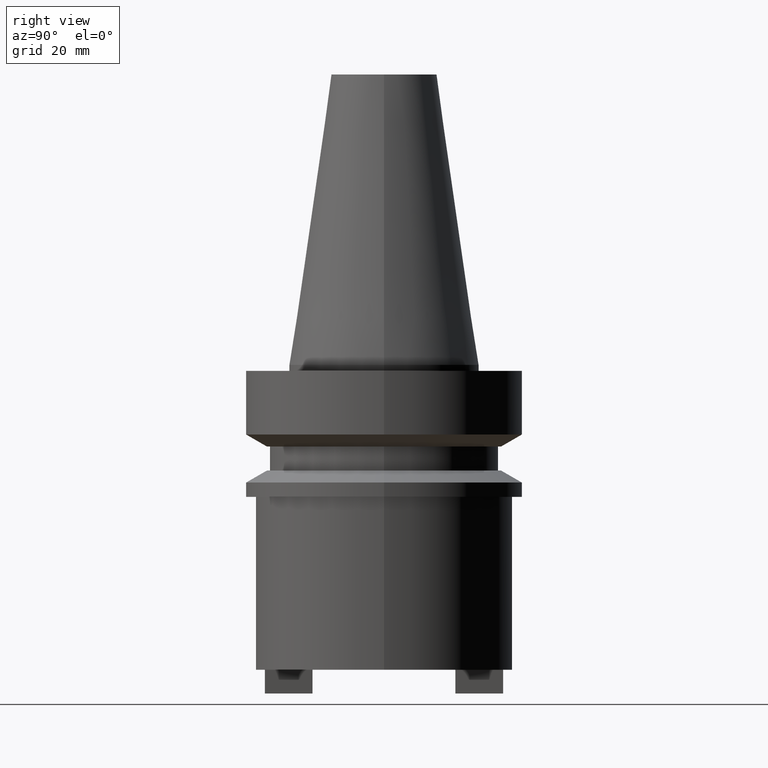
[diagram: clean part render]
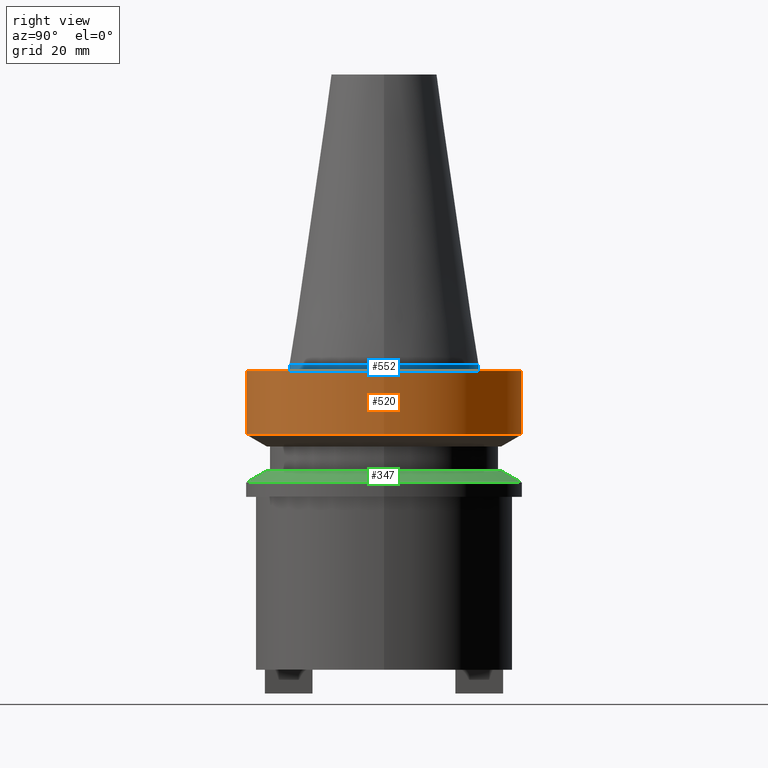
[diagram: same view with three faces highlighted in distinct colors, each labeled with its STEP entity id]
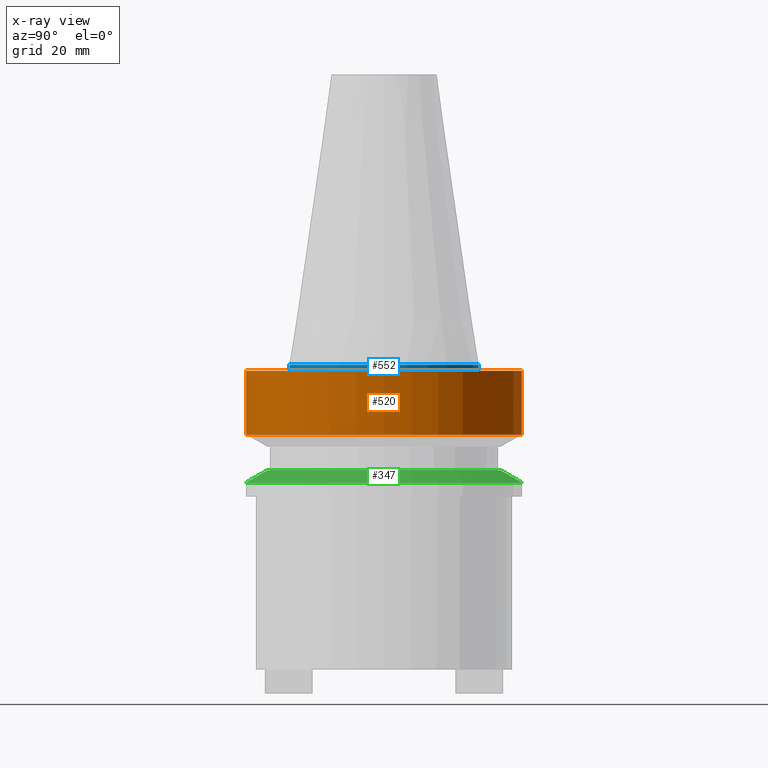
[diagram: x-ray of the same camera — body ghosted, the three highlighted faces saturated]
A machine part, right view with three faces highlighted in distinct colors.
The next image is the same camera in x-ray (body ghosted, the three faces saturated) — at least one of them is partly hidden behind the body in this view.
Their STEP definitions:

[orange] entity #520 — the highlighted cylindrical surface (bore or boss wall) has radius 23 mm, axis along (-0, -0, 1).
#14 = CARTESIAN_POINT ( 'NONE',  ( 0.000000000000000000, 0.000000000000000000, -11.60014200631680126 ) ) ;
#20 = AXIS2_PLACEMENT_3D ( 'NONE', #553, #644, #448 ) ;
#78 = ORIENTED_EDGE ( 'NONE', *, *, #146, .T. ) ;
#79 = CYLINDRICAL_SURFACE ( 'NONE', #20, 23.00000000000000000 ) ;
#146 = EDGE_CURVE ( 'NONE', #354, #354, #368, .T. ) ;
#160 = DIRECTION ( 'NONE',  ( 1.000000000000000000, 0.000000000000000000, 0.000000000000000000 ) ) ;
#166 = CARTESIAN_POINT ( 'NONE',  ( 0.000000000000000000, 0.000000000000000000, -1.000000000000000888 ) ) ;
#212 = CIRCLE ( 'NONE', #623, 22.99999999999999645 ) ;
#230 = DIRECTION ( 'NONE',  ( -0.000000000000000000, -0.000000000000000000, 1.000000000000000000 ) ) ;
#250 = CARTESIAN_POINT ( 'NONE',  ( 23.00000000000000355, 0.000000000000000000, -11.60014200631680126 ) ) ;
#260 = VERTEX_POINT ( 'NONE', #651 ) ;
#284 = FACE_OUTER_BOUND ( 'NONE', #370, .T. ) ;
#326 = AXIS2_PLACEMENT_3D ( 'NONE', #14, #230, #594 ) ;
#334 = EDGE_LOOP ( 'NONE', ( #78 ) ) ;
#349 = FACE_OUTER_BOUND ( 'NONE', #334, .T. ) ;
#354 = VERTEX_POINT ( 'NONE', #250 ) ;
#368 = CIRCLE ( 'NONE', #326, 23.00000000000000355 ) ;
#370 = EDGE_LOOP ( 'NONE', ( #538 ) ) ;
#439 = DIRECTION ( 'NONE',  ( -0.000000000000000000, -0.000000000000000000, 1.000000000000000000 ) ) ;
#444 = EDGE_CURVE ( 'NONE', #260, #260, #212, .T. ) ;
#448 = DIRECTION ( 'NONE',  ( 1.000000000000000000, 0.000000000000000000, 0.000000000000000000 ) ) ;
#520 = ADVANCED_FACE ( 'NONE', ( #284, #349 ), #79, .T. ) ;
#538 = ORIENTED_EDGE ( 'NONE', *, *, #444, .F. ) ;
#553 = CARTESIAN_POINT ( 'NONE',  ( 0.000000000000000000, 0.000000000000000000, 48.39999999999998437 ) ) ;
#594 = DIRECTION ( 'NONE',  ( 1.000000000000000000, 0.000000000000000000, 0.000000000000000000 ) ) ;
#623 = AXIS2_PLACEMENT_3D ( 'NONE', #166, #439, #160 ) ;
#644 = DIRECTION ( 'NONE',  ( -0.000000000000000000, -0.000000000000000000, 1.000000000000000000 ) ) ;
#651 = CARTESIAN_POINT ( 'NONE',  ( 22.99999999999999645, 0.000000000000000000, -1.000000000000000888 ) ) ;

[blue] entity #552 — the highlighted cylindrical surface (bore or boss wall) has radius 15.875 mm, axis along (-0, -0, 1).
#2 = CARTESIAN_POINT ( 'NONE',  ( 0.000000000000000000, 0.000000000000000000, -1.000000000000000888 ) ) ;
#31 = AXIS2_PLACEMENT_3D ( 'NONE', #2, #50, #672 ) ;
#38 = VERTEX_POINT ( 'NONE', #415 ) ;
#39 = EDGE_CURVE ( 'NONE', #187, #187, #467, .T. ) ;
#50 = DIRECTION ( 'NONE',  ( -0.000000000000000000, -0.000000000000000000, 1.000000000000000000 ) ) ;
#84 = CARTESIAN_POINT ( 'NONE',  ( 15.87500000000000000, 0.000000000000000000, 0.000000000000000000 ) ) ;
#98 = CIRCLE ( 'NONE', #31, 15.87500000000000000 ) ;
#176 = DIRECTION ( 'NONE',  ( -0.000000000000000000, -0.000000000000000000, 1.000000000000000000 ) ) ;
#187 = VERTEX_POINT ( 'NONE', #84 ) ;
#293 = CARTESIAN_POINT ( 'NONE',  ( 0.000000000000000000, 0.000000000000000000, 48.39999999999998437 ) ) ;
#333 = FACE_OUTER_BOUND ( 'NONE', #650, .T. ) ;
#344 = DIRECTION ( 'NONE',  ( 1.000000000000000000, 0.000000000000000000, 0.000000000000000000 ) ) ;
#415 = CARTESIAN_POINT ( 'NONE',  ( 15.87500000000000000, 0.000000000000000000, -1.000000000000000888 ) ) ;
#425 = AXIS2_PLACEMENT_3D ( 'NONE', #293, #176, #452 ) ;
#452 = DIRECTION ( 'NONE',  ( 1.000000000000000000, 0.000000000000000000, 0.000000000000000000 ) ) ;
#458 = ORIENTED_EDGE ( 'NONE', *, *, #493, .T. ) ;
#467 = CIRCLE ( 'NONE', #529, 15.87500000000000000 ) ;
#483 = ORIENTED_EDGE ( 'NONE', *, *, #39, .F. ) ;
#493 = EDGE_CURVE ( 'NONE', #38, #38, #98, .T. ) ;
#494 = FACE_OUTER_BOUND ( 'NONE', #656, .T. ) ;
#529 = AXIS2_PLACEMENT_3D ( 'NONE', #652, #547, #344 ) ;
#541 = CYLINDRICAL_SURFACE ( 'NONE', #425, 15.87500000000000000 ) ;
#547 = DIRECTION ( 'NONE',  ( -0.000000000000000000, -0.000000000000000000, 1.000000000000000000 ) ) ;
#552 = ADVANCED_FACE ( 'NONE', ( #494, #333 ), #541, .T. ) ;
#650 = EDGE_LOOP ( 'NONE', ( #458 ) ) ;
#652 = CARTESIAN_POINT ( 'NONE',  ( 0.000000000000000000, 0.000000000000000000, 0.000000000000000000 ) ) ;
#656 = EDGE_LOOP ( 'NONE', ( #483 ) ) ;
#672 = DIRECTION ( 'NONE',  ( 1.000000000000000000, 0.000000000000000000, 0.000000000000000000 ) ) ;

[green] entity #347 — the highlighted conical surface has half-angle 60 deg.
#3 = EDGE_LOOP ( 'NONE', ( #561 ) ) ;
#29 = FACE_BOUND ( 'NONE', #465, .T. ) ;
#36 = DIRECTION ( 'NONE',  ( -0.000000000000000000, -0.000000000000000000, 1.000000000000000000 ) ) ;
#86 = CIRCLE ( 'NONE', #478, 19.53589838486230690 ) ;
#95 = DIRECTION ( 'NONE',  ( 1.000000000000000000, 0.000000000000000000, 0.000000000000000000 ) ) ;
#108 = CARTESIAN_POINT ( 'NONE',  ( 0.000000000000000000, 0.000000000000000000, -19.60014200631680836 ) ) ;
#159 = CONICAL_SURFACE ( 'NONE', #550, 22.99999999999999645, 1.047197551196588972 ) ;
#170 = AXIS2_PLACEMENT_3D ( 'NONE', #530, #273, #369 ) ;
#179 = CIRCLE ( 'NONE', #170, 22.99999999999999645 ) ;
#246 = FACE_OUTER_BOUND ( 'NONE', #3, .T. ) ;
#273 = DIRECTION ( 'NONE',  ( -0.000000000000000000, -0.000000000000000000, 1.000000000000000000 ) ) ;
#298 = VERTEX_POINT ( 'NONE', #514 ) ;
#310 = EDGE_CURVE ( 'NONE', #360, #360, #86, .T. ) ;
#331 = DIRECTION ( 'NONE',  ( 0.000000000000000000, 0.000000000000000000, -1.000000000000000000 ) ) ;
#347 = ADVANCED_FACE ( 'NONE', ( #29, #246 ), #159, .T. ) ;
#360 = VERTEX_POINT ( 'NONE', #459 ) ;
#369 = DIRECTION ( 'NONE',  ( 1.000000000000000000, 0.000000000000000000, 0.000000000000000000 ) ) ;
#459 = CARTESIAN_POINT ( 'NONE',  ( 19.53589838486230690, 0.000000000000000000, -17.60014200631680836 ) ) ;
#465 = EDGE_LOOP ( 'NONE', ( #473 ) ) ;
#473 = ORIENTED_EDGE ( 'NONE', *, *, #310, .F. ) ;
#474 = EDGE_CURVE ( 'NONE', #298, #298, #179, .T. ) ;
#478 = AXIS2_PLACEMENT_3D ( 'NONE', #512, #36, #95 ) ;
#512 = CARTESIAN_POINT ( 'NONE',  ( 0.000000000000000000, 0.000000000000000000, -17.60014200631680836 ) ) ;
#514 = CARTESIAN_POINT ( 'NONE',  ( 22.99999999999999645, 0.000000000000000000, -19.60014200631680836 ) ) ;
#526 = DIRECTION ( 'NONE',  ( -1.000000000000000000, 0.000000000000000000, 0.000000000000000000 ) ) ;
#530 = CARTESIAN_POINT ( 'NONE',  ( 0.000000000000000000, 0.000000000000000000, -19.60014200631680836 ) ) ;
#550 = AXIS2_PLACEMENT_3D ( 'NONE', #108, #331, #526 ) ;
#561 = ORIENTED_EDGE ( 'NONE', *, *, #474, .T. ) ;